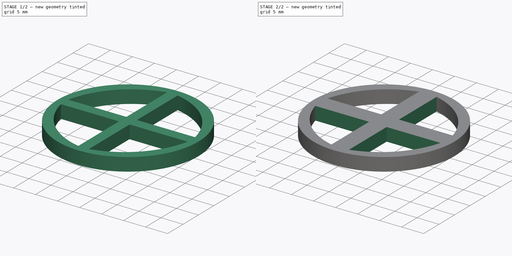
[diagram: build sequence overview — one tinted view per stage of 2, left to right]
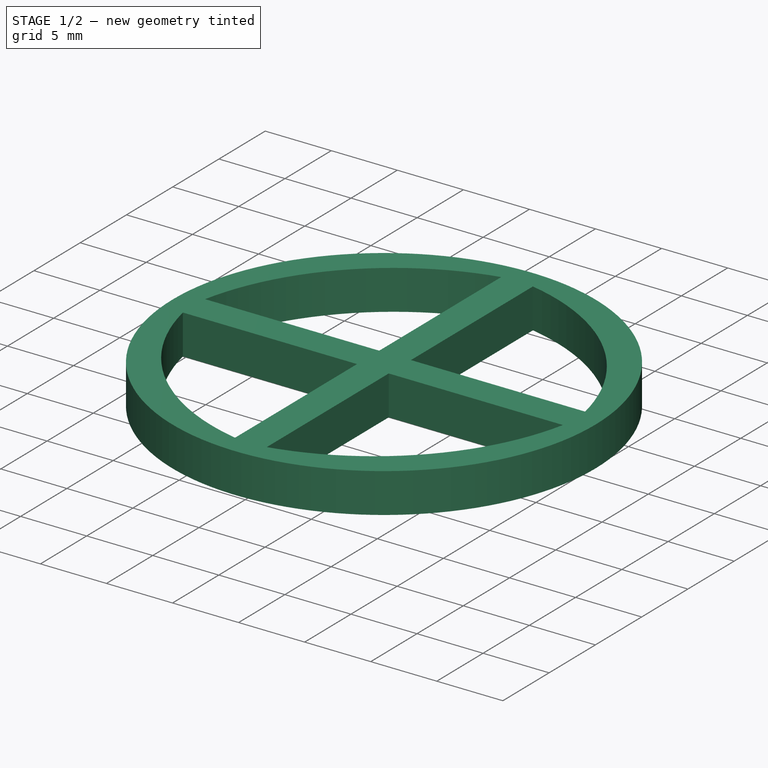
[diagram: stage 1 of 2 — iso view after this stage's code; geometry added in this stage tinted green]
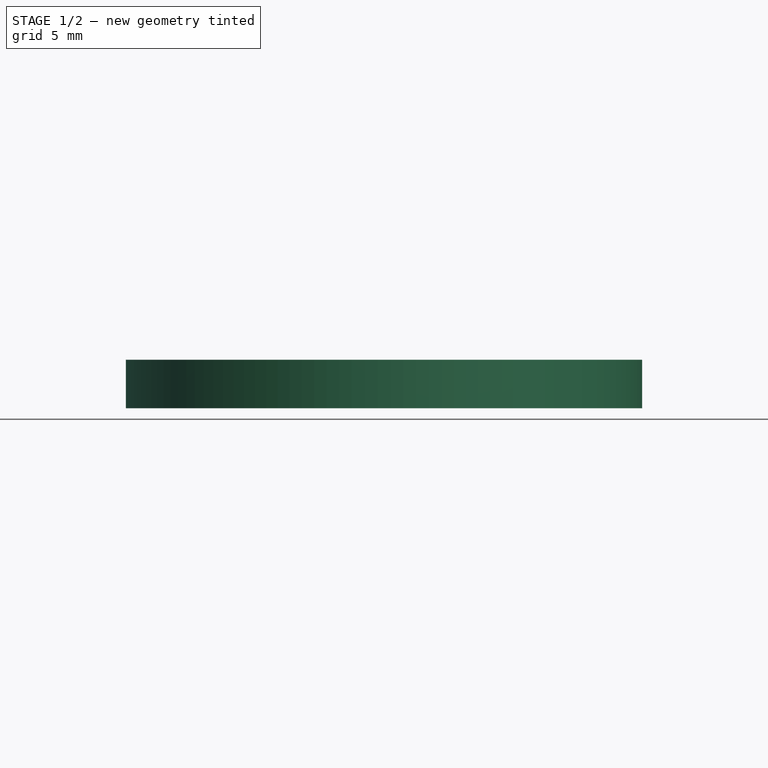
[diagram: stage 1 of 2 — front view after this stage's code; geometry added in this stage tinted green]
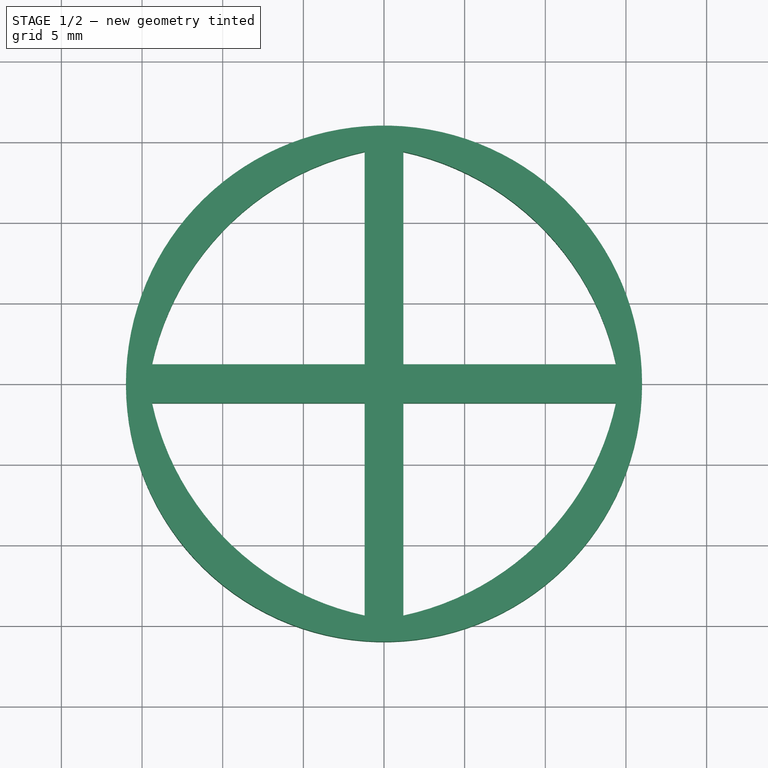
[diagram: stage 1 of 2 — top view after this stage's code; geometry added in this stage tinted green]
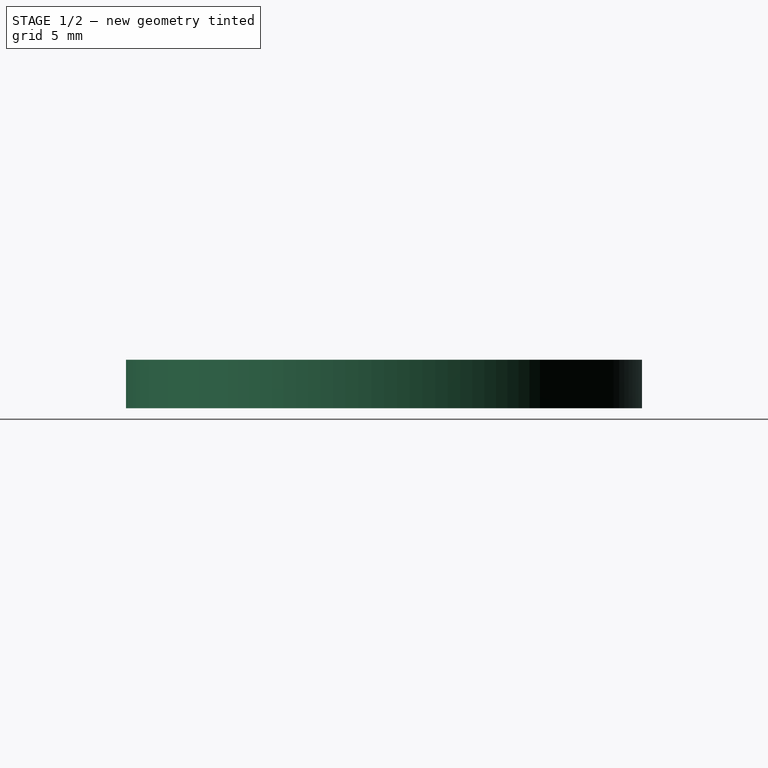
[diagram: stage 1 of 2 — right view after this stage's code; geometry added in this stage tinted green]
FCSTD DOCUMENT  (FreeCAD 1.1R14555 (Git shallow))
Label: Terugslagklep stop
License: All rights reserved
LicenseURL: https://en.wikipedia.org/wiki/All_rights_reserved
objects: App::Point×2, Sketcher::SketchObject×2, PartDesign::Pad×2, PartDesign::Body×2
note: 12 computed .brp shape members not serialized (recipe doc carries the construction recipe); baked Part::Feature solids carry a one-line shape summary decoded from their .brp

FEATURE [PartDesign::Body] Body
  AllowCompound = false
  Group = -> [Sketch,Pad]
  Origin = -> Origin
  Tip = -> Pad
FEATURE [App::Point] Origin003
  Role = Origin
FEATURE [Sketcher::SketchObject] Sketch001
  ArcFitTolerance = 1e-06
  AttachmentSupport = -> [Origin002]
  ExternalTypes = [0]
  FullyConstrained = false
  MakeInternals = false
  MapMode = 5
  sketch-geometry (13):
    g0: Circle CenterX=0 CenterY=0 CenterZ=0 NormalX=0 NormalY=0 NormalZ=1 AngleXU=0 Radius=16
    g1: LineSegment StartX=-14.3821 StartY=1.2 StartZ=0 EndX=-1.2 EndY=1.2 EndZ=0
    g2: LineSegment StartX=-1.2 StartY=1.2 StartZ=0 EndX=-1.2 EndY=14.3821 EndZ=0
    g3: ArcOfCircle CenterX=2.42949 CenterY=-2.42949 CenterZ=0 NormalX=0 NormalY=0 NormalZ=1 AngleXU=0 Radius=17.1989 StartAngle=1.78343 EndAngle=2.92896
    g4: LineSegment StartX=1.2 StartY=1.2 StartZ=0 EndX=1.2 EndY=14.3821 EndZ=0
    g5: ArcOfCircle CenterX=-2.42949 CenterY=-2.42949 CenterZ=0 NormalX=0 NormalY=0 NormalZ=1 AngleXU=0 Radius=17.1989 StartAngle=0.212629 EndAngle=1.35817
    g6: LineSegment StartX=14.3821 StartY=1.2 StartZ=0 EndX=1.2 EndY=1.2 EndZ=0
    g7: ArcOfCircle CenterX=2.42949 CenterY=2.42949 CenterZ=0 NormalX=0 NormalY=0 NormalZ=1 AngleXU=0 Radius=17.1989 StartAngle=3.35422 EndAngle=4.49976
    g8: LineSegment StartX=-14.3821 StartY=-1.2 StartZ=0 EndX=-1.2 EndY=-1.2 EndZ=0
    g9: LineSegment StartX=-1.2 StartY=-1.2 StartZ=0 EndX=-1.2 EndY=-14.3821 EndZ=0
    g10: LineSegment StartX=1.2 StartY=-1.2 StartZ=0 EndX=1.2 EndY=-14.3821 EndZ=0
    g11: ArcOfCircle CenterX=-2.42949 CenterY=2.42949 CenterZ=0 NormalX=0 NormalY=0 NormalZ=1 AngleXU=0 Radius=17.1989 StartAngle=4.92502 EndAngle=6.07056
    g12: LineSegment StartX=14.3821 StartY=-1.2 StartZ=0 EndX=1.2 EndY=-1.2 EndZ=0
  constraints (28):
    c: Coincident(g0,g-1)
    c: Diameter(g0) = 32
    c: Coincident(g2,g1)
    c: Vertical(g2)
    c: Coincident(g3,g1)
    c: Coincident(g3,g2)
    c: Horizontal(g1)
    c: DistanceY(g0,g1) = 1.2
    c: DistanceX(g1,g0) = 1.2
    c: Equal(g2,g1)
    c: Coincident(g4,g6)
    c: Vertical(g4)
    c: Coincident(g5,g6)
    c: Coincident(g5,g4)
    c: Horizontal(g6)
    c: Equal(g4,g6)
    c: Coincident(g9,g8)
    c: Vertical(g9)
    c: Coincident(g7,g8)
    c: Coincident(g7,g9)
    c: Horizontal(g8)
    c: Equal(g9,g8)
    c: Coincident(g10,g12)
    c: Vertical(g10)
    c: Coincident(g11,g12)
    c: Coincident(g11,g10)
    c: Horizontal(g12)
    c: Equal(g10,g12)
FEATURE [PartDesign::Pad] Pad001
  Direction = (0,0,1)
  Length = 3
  Length2 = 10
  Profile = -> Sketch001
  ReferenceAxis = -> Sketch001 [N_Axis]
  SideType = 0
  Suppressed = false
  Type = 0
  Type2 = 0
FEATURE [PartDesign::Body] Body001
  AllowCompound = false
  Group = -> [Sketch001,Pad001]
  Origin = -> Origin002
  Tip = -> Pad001
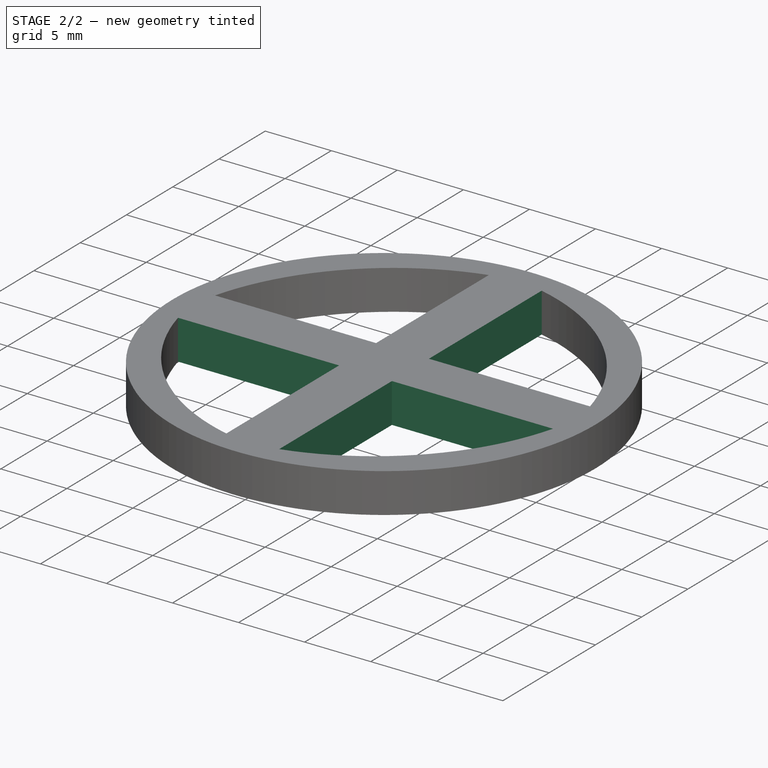
[diagram: stage 2 of 2 — iso view after this stage's code; geometry added in this stage tinted green]
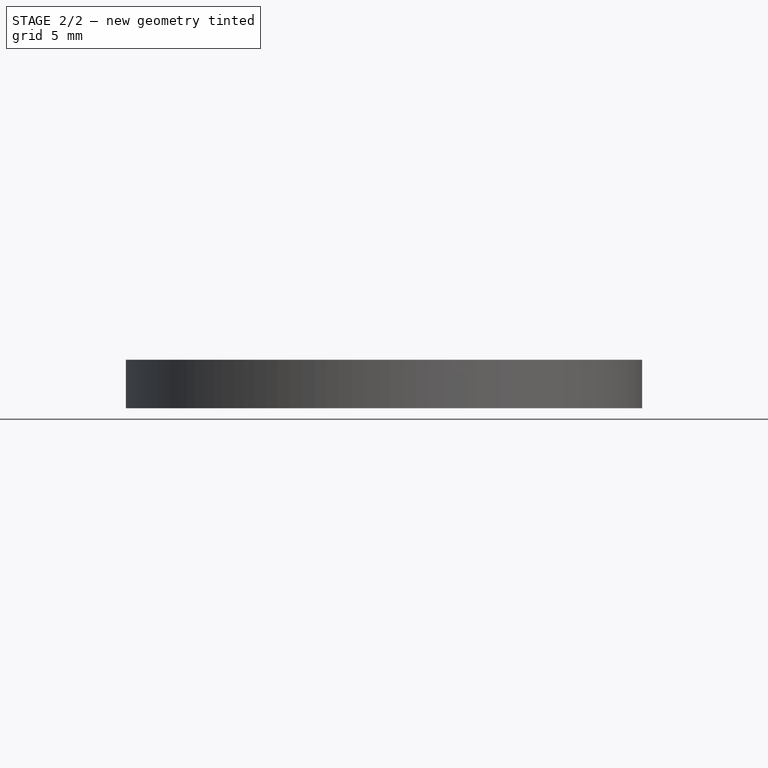
[diagram: stage 2 of 2 — front view after this stage's code; geometry added in this stage tinted green]
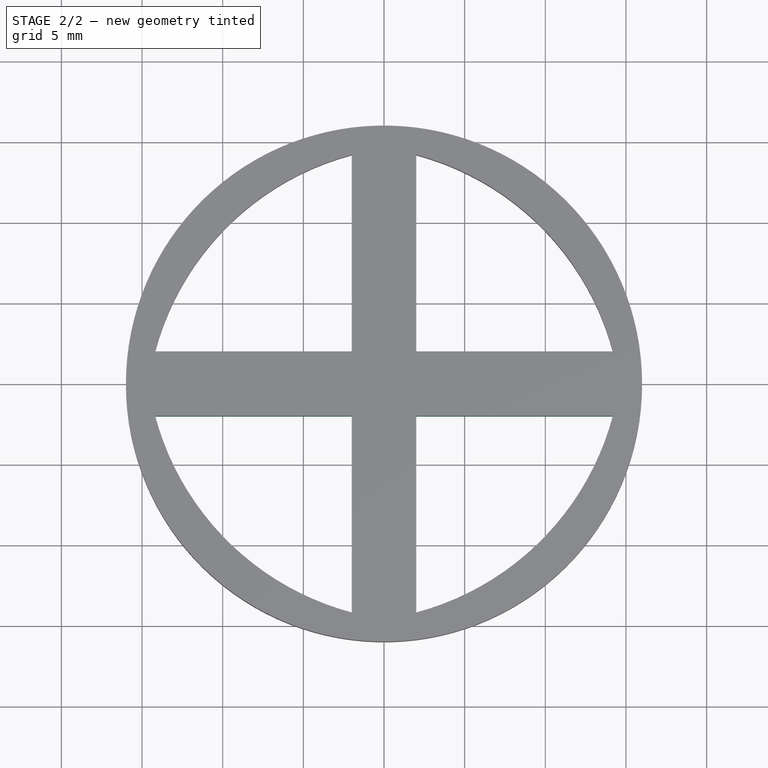
[diagram: stage 2 of 2 — top view after this stage's code; geometry added in this stage tinted green]
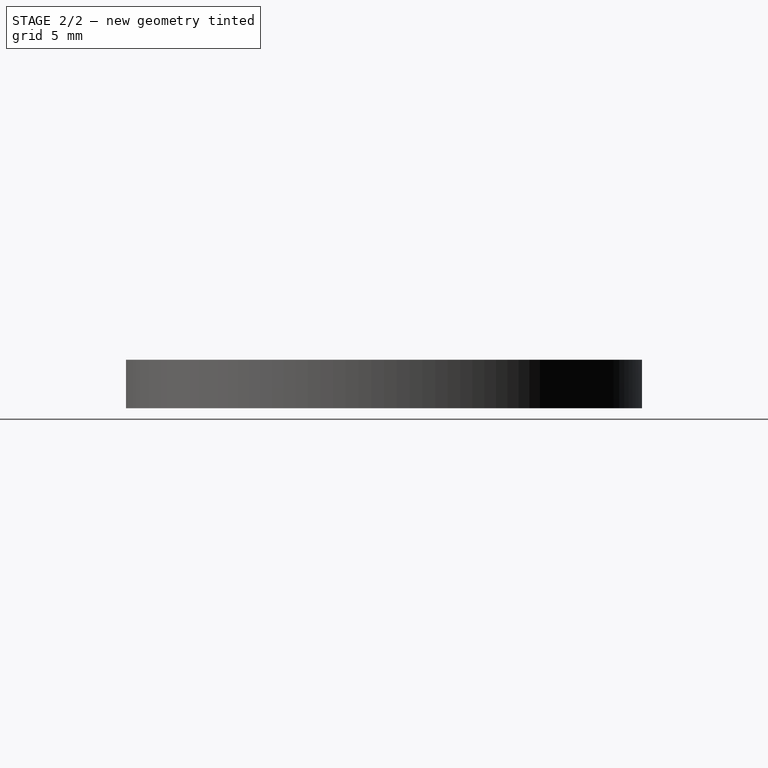
[diagram: stage 2 of 2 — right view after this stage's code; geometry added in this stage tinted green]
FEATURE [App::Point] Origin001
  Role = Origin
FEATURE [Sketcher::SketchObject] Sketch
  ArcFitTolerance = 1e-06
  AttachmentSupport = -> [Origin]
  ExternalTypes = [0]
  FullyConstrained = false
  MakeInternals = false
  MapMode = 5
  sketch-geometry (13):
    g0: Circle CenterX=0 CenterY=0 CenterZ=0 NormalX=0 NormalY=0 NormalZ=1 AngleXU=0 Radius=16
    g1: LineSegment StartX=-14.3611 StartY=2 StartZ=0 EndX=-2 EndY=2 EndZ=0
    g2: LineSegment StartX=-2 StartY=2 StartZ=0 EndX=-2 EndY=14.3611 EndZ=0
    g3: ArcOfCircle CenterX=2.23171 CenterY=-2.23171 CenterZ=0 NormalX=0 NormalY=0 NormalZ=1 AngleXU=0 Radius=17.1239 StartAngle=1.82051 EndAngle=2.89188
    g4: LineSegment StartX=2 StartY=2 StartZ=0 EndX=2 EndY=14.3611 EndZ=0
    g5: ArcOfCircle CenterX=-2.23171 CenterY=-2.23171 CenterZ=0 NormalX=0 NormalY=0 NormalZ=1 AngleXU=0 Radius=17.1239 StartAngle=0.24971 EndAngle=1.32109
    g6: LineSegment StartX=14.3611 StartY=2 StartZ=0 EndX=2 EndY=2 EndZ=0
    g7: ArcOfCircle CenterX=2.23171 CenterY=2.23171 CenterZ=0 NormalX=0 NormalY=0 NormalZ=1 AngleXU=0 Radius=17.1239 StartAngle=3.3913 EndAngle=4.46268
    g8: LineSegment StartX=-2 StartY=-2 StartZ=0 EndX=-2 EndY=-14.3611 EndZ=0
    g9: LineSegment StartX=-14.3611 StartY=-2 StartZ=0 EndX=-2 EndY=-2 EndZ=0
    g10: LineSegment StartX=2 StartY=-2 StartZ=0 EndX=2 EndY=-14.3611 EndZ=0
    g11: ArcOfCircle CenterX=-2.23171 CenterY=2.23171 CenterZ=0 NormalX=0 NormalY=0 NormalZ=1 AngleXU=0 Radius=17.1239 StartAngle=4.9621 EndAngle=6.03348
    g12: LineSegment StartX=14.3611 StartY=-2 StartZ=0 EndX=2 EndY=-2 EndZ=0
  constraints (28):
    c: Coincident(g0,g-1)
    c: Diameter(g0) = 32
    c: Coincident(g2,g1)
    c: Vertical(g2)
    c: Coincident(g3,g1)
    c: Coincident(g3,g2)
    c: Horizontal(g1)
    c: DistanceY(g0,g1) = 2
    c: DistanceX(g1,g0) = 2
    c: Equal(g2,g1)
    c: Coincident(g4,g6)
    c: Vertical(g4)
    c: Coincident(g5,g6)
    c: Coincident(g5,g4)
    c: Horizontal(g6)
    c: Equal(g4,g6)
    c: Coincident(g8,g9)
    c: Vertical(g8)
    c: Coincident(g7,g9)
    c: Coincident(g7,g8)
    c: Horizontal(g9)
    c: Equal(g8,g9)
    c: Coincident(g10,g12)
    c: Vertical(g10)
    c: Coincident(g11,g12)
    c: Coincident(g11,g10)
    c: Horizontal(g12)
    c: Equal(g10,g12)
FEATURE [PartDesign::Pad] Pad
  Direction = (0,0,1)
  Length = 3
  Length2 = 10
  Profile = -> Sketch
  ReferenceAxis = -> Sketch [N_Axis]
  SideType = 0
  Suppressed = false
  Type = 0
  Type2 = 0
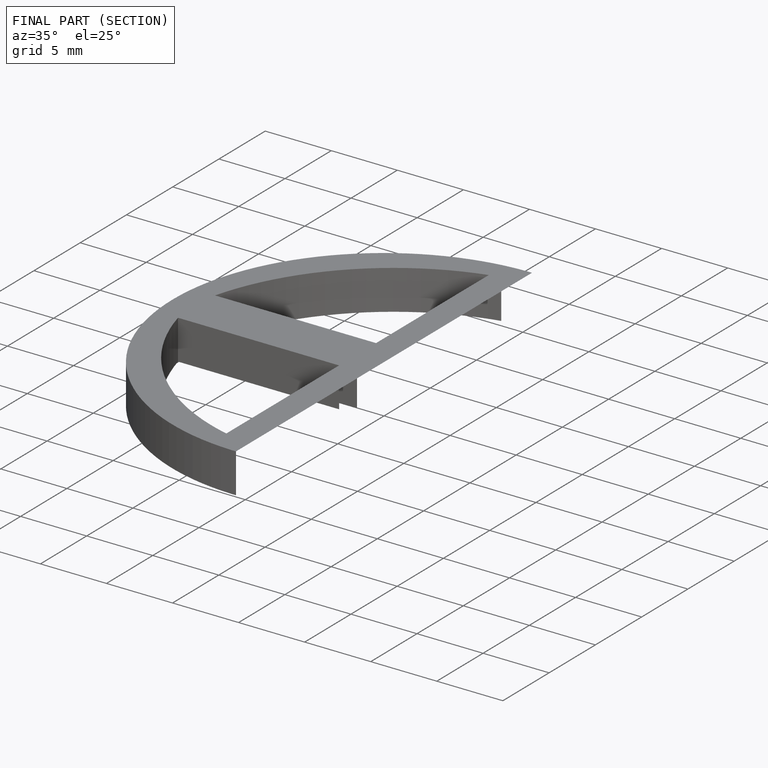
[diagram: finished part — half-section view (interior)]
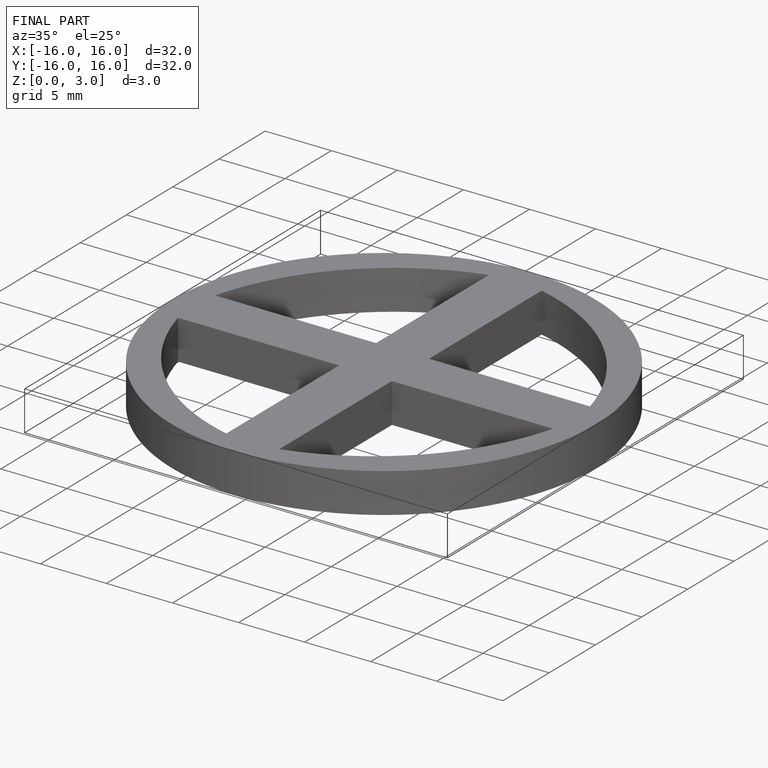
[diagram: finished part — iso view with bounding-box wireframe]
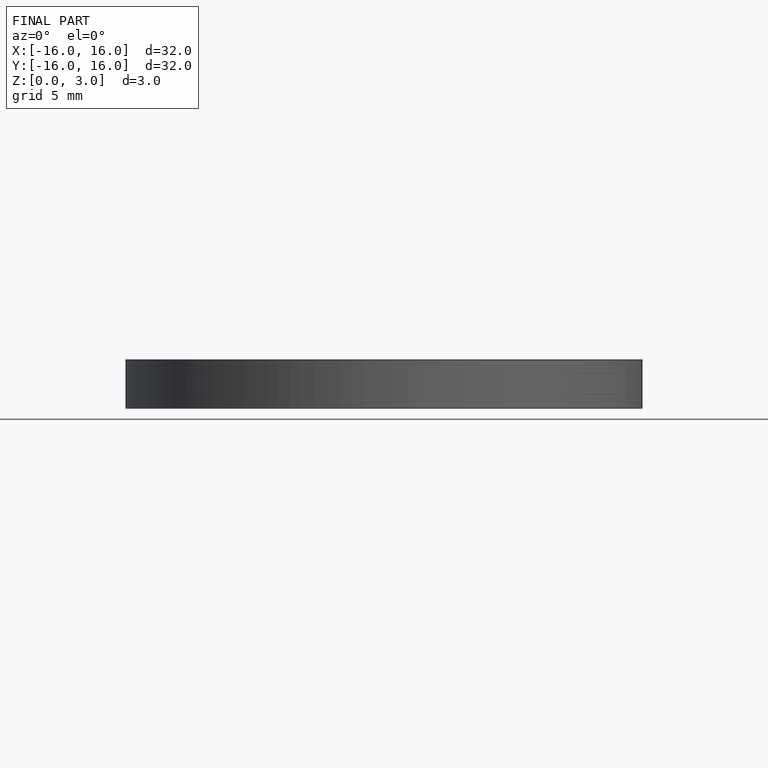
[diagram: finished part — front view with bounding-box wireframe]
